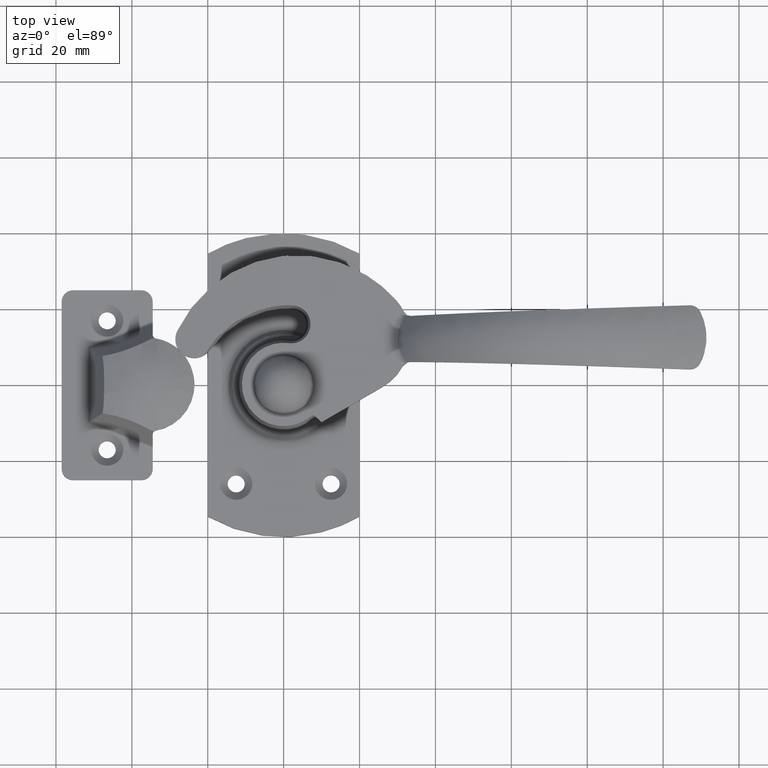
[diagram: clean part render]
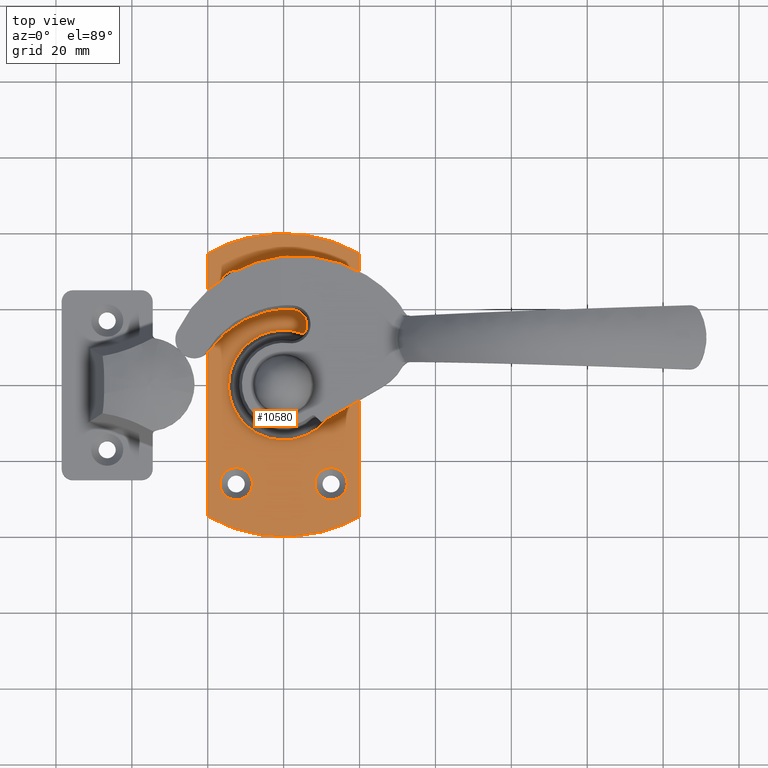
[diagram: same view with one face highlighted and labeled with its STEP entity id]
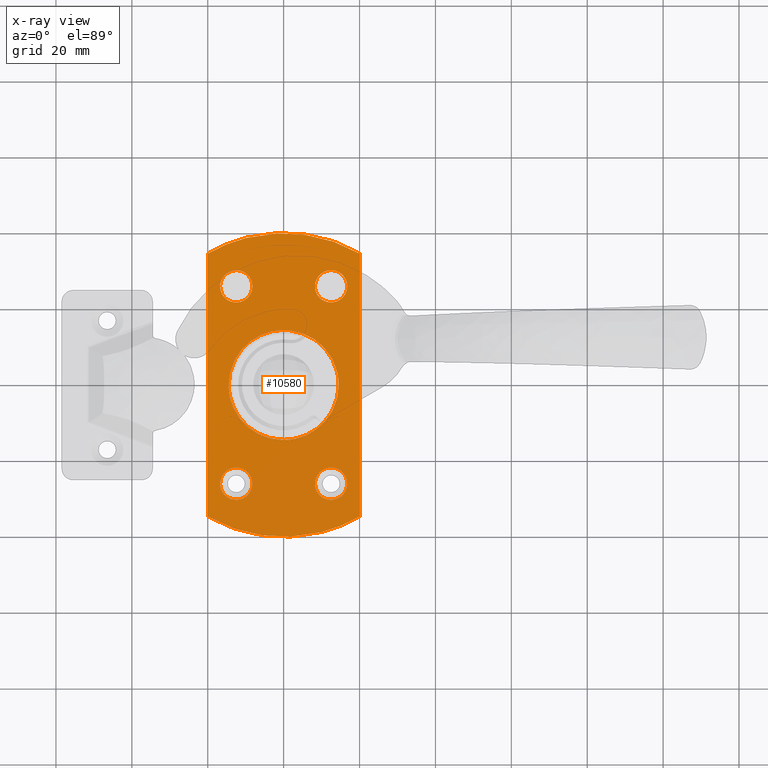
[diagram: x-ray of the same camera — body ghosted, the highlighted face saturated]
A machine part, top view. The second image highlights one B-rep face of the part: STEP entity #10580.
The next image is the same camera in x-ray: the body ghosted, the highlighted face saturated — about 0% of this face is hidden behind the body in this view.
In plain terms, the highlighted face is a freeform B-spline surface patch.
Its self-contained STEP definition (entity closure, byte-faithful):
#7089=CARTESIAN_POINT('',(-0.126534765280450,-14.499447884501190,5.999999999924400));
#7090=VERTEX_POINT('',#7089);
#7096=CARTESIAN_POINT('',(14.500000000000000,0.0,6.0));
#7097=VERTEX_POINT('',#7096);
#7098=CARTESIAN_POINT('',(14.500000000000000,0.0,6.0));
#7099=CARTESIAN_POINT('',(14.500000000000000,-14.500000000000000,6.0));
#7100=CARTESIAN_POINT('',(0.0,-14.500000000000000,6.0));
#7101=CARTESIAN_POINT('',(-0.063268587453551,-14.500000000000005,6.000000000000001));
#7102=CARTESIAN_POINT('',(-0.126534765280450,-14.499447884501190,5.999999999924401));
#7110=(BOUNDED_CURVE()B_SPLINE_CURVE(2,(#7098,#7099,#7100,#7101,#7102),.UNSPECIFIED.,.F.,.U.)B_SPLINE_CURVE_WITH_KNOTS((3,2,3),(0.500000000000000,0.750000000000000,0.751539894348431),.UNSPECIFIED.)CURVE()GEOMETRIC_REPRESENTATION_ITEM()RATIONAL_B_SPLINE_CURVE((1.0,0.707106781186548,1.0,0.998195901550621,0.996414028069292))REPRESENTATION_ITEM(''));
#7111=EDGE_CURVE('',#7097,#7090,#7110,.T.);
#7113=CARTESIAN_POINT('',(1.799856030292883,14.387860100470620,5.999999999982838));
#7114=VERTEX_POINT('',#7113);
#7115=CARTESIAN_POINT('',(1.799856030292883,14.387860100470618,5.999999999982838));
#7116=CARTESIAN_POINT('',(14.500000000000005,12.799129701939425,6.0));
#7117=CARTESIAN_POINT('',(14.500000000000000,0.0,6.0));
#7125=(BOUNDED_CURVE()B_SPLINE_CURVE(2,(#7115,#7116,#7117),.UNSPECIFIED.,.F.,.U.)B_SPLINE_CURVE_WITH_KNOTS((3,3),(0.271473928973825,0.500000000000000),.UNSPECIFIED.)CURVE()GEOMETRIC_REPRESENTATION_ITEM()RATIONAL_B_SPLINE_CURVE((0.954005430268657,0.732265053897407,1.0))REPRESENTATION_ITEM(''));
#7126=EDGE_CURVE('',#7114,#7097,#7125,.T.);
#7176=CARTESIAN_POINT('',(-14.500000000000000,0.0,6.0));
#7177=VERTEX_POINT('',#7176);
#7178=CARTESIAN_POINT('',(-14.500000000000000,0.0,6.0));
#7179=CARTESIAN_POINT('',(-14.500000000000000,14.500000000000000,6.0));
#7180=CARTESIAN_POINT('',(0.0,14.500000000000000,6.0));
#7181=CARTESIAN_POINT('',(0.903421449370458,14.500000000000005,6.000000000000001));
#7182=CARTESIAN_POINT('',(1.799856030292882,14.387860100470617,5.999999999982838));
#7190=(BOUNDED_CURVE()B_SPLINE_CURVE(2,(#7178,#7179,#7180,#7181,#7182),.UNSPECIFIED.,.F.,.U.)B_SPLINE_CURVE_WITH_KNOTS((3,2,3),(0.0,0.250000000000000,0.271473928973825),.UNSPECIFIED.)CURVE()GEOMETRIC_REPRESENTATION_ITEM()RATIONAL_B_SPLINE_CURVE((1.0,0.707106781186548,1.0,0.974841727289140,0.954005430268658))REPRESENTATION_ITEM(''));
#7191=EDGE_CURVE('',#7177,#7114,#7190,.T.);
#7193=CARTESIAN_POINT('',(-0.126534765280450,-14.499447884501189,5.999999999924401));
#7194=CARTESIAN_POINT('',(-14.500000000000007,-14.374012552529983,6.0));
#7195=CARTESIAN_POINT('',(-14.500000000000000,0.0,6.0));
#7203=(BOUNDED_CURVE()B_SPLINE_CURVE(2,(#7193,#7194,#7195),.UNSPECIFIED.,.F.,.U.)B_SPLINE_CURVE_WITH_KNOTS((3,3),(0.751539894348432,1.0),.UNSPECIFIED.)CURVE()GEOMETRIC_REPRESENTATION_ITEM()RATIONAL_B_SPLINE_CURVE((0.996414028069290,0.708910879635927,1.0))REPRESENTATION_ITEM(''));
#7204=EDGE_CURVE('',#7090,#7177,#7203,.T.);
#7462=CARTESIAN_POINT('',(-13.001645497956600,21.779709512949729,6.000000000083199));
#7463=VERTEX_POINT('',#7462);
#7469=CARTESIAN_POINT('',(-8.250000000000000,26.0,6.0));
#7470=VERTEX_POINT('',#7469);
#7471=CARTESIAN_POINT('',(-13.001645497956602,21.779709512949729,6.000000000083199));
#7472=CARTESIAN_POINT('',(-12.751702509183103,21.750000000000000,6.0));
#7473=CARTESIAN_POINT('',(-12.500000000000000,21.750000000000000,6.0));
#7474=CARTESIAN_POINT('',(-8.250000000000000,21.750000000000000,6.0));
#7475=CARTESIAN_POINT('',(-8.250000000000000,26.0,6.0));
#7483=(BOUNDED_CURVE()B_SPLINE_CURVE(2,(#7471,#7472,#7473,#7474,#7475),.UNSPECIFIED.,.F.,.U.)B_SPLINE_CURVE_WITH_KNOTS((3,2,3),(0.229562473463140,0.250000000000000,0.500000000000000),.UNSPECIFIED.)CURVE()GEOMETRIC_REPRESENTATION_ITEM()RATIONAL_B_SPLINE_CURVE((0.956026754084976,0.976055948272135,1.0,0.707106781186548,1.0))REPRESENTATION_ITEM(''));
#7484=EDGE_CURVE('',#7463,#7470,#7483,.T.);
#7486=CARTESIAN_POINT('',(-12.240543705135419,30.242072893424350,6.000000000243587));
#7487=VERTEX_POINT('',#7486);
#7488=CARTESIAN_POINT('',(-8.250000000000000,26.0,6.0));
#7489=CARTESIAN_POINT('',(-8.249999999999998,29.998000780899833,6.0));
#7490=CARTESIAN_POINT('',(-12.240543705135419,30.242072893424346,6.000000000243587));
#7498=(BOUNDED_CURVE()B_SPLINE_CURVE(2,(#7488,#7489,#7490),.UNSPECIFIED.,.F.,.U.)B_SPLINE_CURVE_WITH_KNOTS((3,3),(0.500000000000000,0.739332962093377),.UNSPECIFIED.)CURVE()GEOMETRIC_REPRESENTATION_ITEM()RATIONAL_B_SPLINE_CURVE((1.0,0.719603993457251,0.976072041354742))REPRESENTATION_ITEM(''));
#7499=EDGE_CURVE('',#7470,#7487,#7498,.T.);
#7533=CARTESIAN_POINT('',(-16.750000000000000,26.0,6.0));
#7534=VERTEX_POINT('',#7533);
#7535=CARTESIAN_POINT('',(-12.240543705135416,30.242072893424357,6.000000000243587));
#7536=CARTESIAN_POINT('',(-12.370150754149309,30.250000000000000,6.000000000000001));
#7537=CARTESIAN_POINT('',(-12.500000000000000,30.250000000000000,6.0));
#7538=CARTESIAN_POINT('',(-16.750000000000000,30.250000000000007,6.0));
#7539=CARTESIAN_POINT('',(-16.750000000000000,26.0,6.0));
#7547=(BOUNDED_CURVE()B_SPLINE_CURVE(2,(#7535,#7536,#7537,#7538,#7539),.UNSPECIFIED.,.F.,.U.)B_SPLINE_CURVE_WITH_KNOTS((3,2,3),(0.739332962093376,0.750000000000000,1.0),.UNSPECIFIED.)CURVE()GEOMETRIC_REPRESENTATION_ITEM()RATIONAL_B_SPLINE_CURVE((0.976072041354741,0.987502787729296,1.0,0.707106781186548,1.0))REPRESENTATION_ITEM(''));
#7548=EDGE_CURVE('',#7487,#7534,#7547,.T.);
#7550=CARTESIAN_POINT('',(-16.750000000000000,26.0,6.0));
#7551=CARTESIAN_POINT('',(-16.750000000000004,22.225258265887643,6.0));
#7552=CARTESIAN_POINT('',(-13.001645497956602,21.779709512949729,6.000000000083199));
#7560=(BOUNDED_CURVE()B_SPLINE_CURVE(2,(#7550,#7551,#7552),.UNSPECIFIED.,.F.,.U.)B_SPLINE_CURVE_WITH_KNOTS((3,3),(0.0,0.229562473463140),.UNSPECIFIED.)CURVE()GEOMETRIC_REPRESENTATION_ITEM()RATIONAL_B_SPLINE_CURVE((1.0,0.731050832914412,0.956026754084976))REPRESENTATION_ITEM(''));
#7561=EDGE_CURVE('',#7534,#7463,#7560,.T.);
#7791=CARTESIAN_POINT('',(12.833451159268821,21.763101331509141,6.000000000314981));
#7792=VERTEX_POINT('',#7791);
#7798=CARTESIAN_POINT('',(16.750000000000000,26.0,6.0));
#7799=VERTEX_POINT('',#7798);
#7800=CARTESIAN_POINT('',(16.750000000000000,26.0,6.0));
#7801=CARTESIAN_POINT('',(16.750000000000007,22.071340414918591,6.000000000000001));
#7802=CARTESIAN_POINT('',(12.833451159268819,21.763101331509141,6.000000000314981));
#7810=(BOUNDED_CURVE()B_SPLINE_CURVE(2,(#7800,#7801,#7802),.UNSPECIFIED.,.F.,.U.)B_SPLINE_CURVE_WITH_KNOTS((3,3),(0.0,0.236331300438498),.UNSPECIFIED.)CURVE()GEOMETRIC_REPRESENTATION_ITEM()RATIONAL_B_SPLINE_CURVE((1.0,0.723120658832797,0.969723355766390))REPRESENTATION_ITEM(''));
#7811=EDGE_CURVE('',#7799,#7792,#7810,.T.);
#7813=CARTESIAN_POINT('',(12.166548840731179,30.236898668490859,6.000000000314980));
#7814=VERTEX_POINT('',#7813);
#7815=CARTESIAN_POINT('',(12.166548840731183,30.236898668490859,6.000000000314980));
#7816=CARTESIAN_POINT('',(12.333017042805499,30.250000000000007,6.000000000000001));
#7817=CARTESIAN_POINT('',(12.500000000000000,30.250000000000000,6.0));
#7818=CARTESIAN_POINT('',(16.750000000000000,30.250000000000007,6.0));
#7819=CARTESIAN_POINT('',(16.750000000000000,26.0,6.0));
#7827=(BOUNDED_CURVE()B_SPLINE_CURVE(2,(#7815,#7816,#7817,#7818,#7819),.UNSPECIFIED.,.F.,.U.)B_SPLINE_CURVE_WITH_KNOTS((3,2,3),(0.736331300438498,0.750000000000000,1.0),.UNSPECIFIED.)CURVE()GEOMETRIC_REPRESENTATION_ITEM()RATIONAL_B_SPLINE_CURVE((0.969723355766390,0.983986122353750,1.0,0.707106781186548,1.0))REPRESENTATION_ITEM(''));
#7828=EDGE_CURVE('',#7814,#7799,#7827,.T.);
#7865=CARTESIAN_POINT('',(8.250000000000000,26.0,6.0));
#7866=VERTEX_POINT('',#7865);
#7867=CARTESIAN_POINT('',(8.250000000000000,26.0,6.0));
#7868=CARTESIAN_POINT('',(8.250000000000000,29.928659585081384,6.000000000000001));
#7869=CARTESIAN_POINT('',(12.166548840731188,30.236898668490863,6.000000000314980));
#7877=(BOUNDED_CURVE()B_SPLINE_CURVE(2,(#7867,#7868,#7869),.UNSPECIFIED.,.F.,.U.)B_SPLINE_CURVE_WITH_KNOTS((3,3),(0.500000000000000,0.736331300438497),.UNSPECIFIED.)CURVE()GEOMETRIC_REPRESENTATION_ITEM()RATIONAL_B_SPLINE_CURVE((1.0,0.723120658832798,0.969723355766389))REPRESENTATION_ITEM(''));
#7878=EDGE_CURVE('',#7866,#7814,#7877,.T.);
#7880=CARTESIAN_POINT('',(12.833451159268819,21.763101331509141,6.000000000314981));
#7881=CARTESIAN_POINT('',(12.666982957194506,21.750000000000004,6.0));
#7882=CARTESIAN_POINT('',(12.500000000000000,21.750000000000000,6.0));
#7883=CARTESIAN_POINT('',(8.250000000000000,21.750000000000000,6.0));
#7884=CARTESIAN_POINT('',(8.250000000000000,26.0,6.0));
#7892=(BOUNDED_CURVE()B_SPLINE_CURVE(2,(#7880,#7881,#7882,#7883,#7884),.UNSPECIFIED.,.F.,.U.)B_SPLINE_CURVE_WITH_KNOTS((3,2,3),(0.236331300438498,0.250000000000000,0.500000000000000),.UNSPECIFIED.)CURVE()GEOMETRIC_REPRESENTATION_ITEM()RATIONAL_B_SPLINE_CURVE((0.969723355766390,0.983986122353750,1.0,0.707106781186548,1.0))REPRESENTATION_ITEM(''));
#7893=EDGE_CURVE('',#7792,#7866,#7892,.T.);
#8123=CARTESIAN_POINT('',(-12.833451159268821,-21.763101331509141,6.000000000314981));
#8124=VERTEX_POINT('',#8123);
#8130=CARTESIAN_POINT('',(-16.750000000000000,-26.0,6.0));
#8131=VERTEX_POINT('',#8130);
#8132=CARTESIAN_POINT('',(-16.750000000000000,-26.0,6.0));
#8133=CARTESIAN_POINT('',(-16.750000000000007,-22.071340414918591,6.000000000000001));
#8134=CARTESIAN_POINT('',(-12.833451159268819,-21.763101331509141,6.000000000314981));
#8142=(BOUNDED_CURVE()B_SPLINE_CURVE(2,(#8132,#8133,#8134),.UNSPECIFIED.,.F.,.U.)B_SPLINE_CURVE_WITH_KNOTS((3,3),(0.0,0.236331300438498),.UNSPECIFIED.)CURVE()GEOMETRIC_REPRESENTATION_ITEM()RATIONAL_B_SPLINE_CURVE((1.0,0.723120658832797,0.969723355766390))REPRESENTATION_ITEM(''));
#8143=EDGE_CURVE('',#8131,#8124,#8142,.T.);
#8145=CARTESIAN_POINT('',(-12.166548840731179,-30.236898668490859,6.000000000314980));
#8146=VERTEX_POINT('',#8145);
#8147=CARTESIAN_POINT('',(-12.166548840731183,-30.236898668490859,6.000000000314980));
#8148=CARTESIAN_POINT('',(-12.333017042805499,-30.250000000000007,6.000000000000001));
#8149=CARTESIAN_POINT('',(-12.500000000000000,-30.250000000000000,6.0));
#8150=CARTESIAN_POINT('',(-16.750000000000000,-30.250000000000007,6.0));
#8151=CARTESIAN_POINT('',(-16.750000000000000,-26.0,6.0));
#8159=(BOUNDED_CURVE()B_SPLINE_CURVE(2,(#8147,#8148,#8149,#8150,#8151),.UNSPECIFIED.,.F.,.U.)B_SPLINE_CURVE_WITH_KNOTS((3,2,3),(0.736331300438498,0.750000000000000,1.0),.UNSPECIFIED.)CURVE()GEOMETRIC_REPRESENTATION_ITEM()RATIONAL_B_SPLINE_CURVE((0.969723355766390,0.983986122353750,1.0,0.707106781186548,1.0))REPRESENTATION_ITEM(''));
#8160=EDGE_CURVE('',#8146,#8131,#8159,.T.);
#8197=CARTESIAN_POINT('',(-8.250000000000000,-26.0,6.0));
#8198=VERTEX_POINT('',#8197);
#8199=CARTESIAN_POINT('',(-8.250000000000000,-26.0,6.0));
#8200=CARTESIAN_POINT('',(-8.250000000000000,-29.928659585081384,6.000000000000001));
#8201=CARTESIAN_POINT('',(-12.166548840731188,-30.236898668490863,6.000000000314980));
#8209=(BOUNDED_CURVE()B_SPLINE_CURVE(2,(#8199,#8200,#8201),.UNSPECIFIED.,.F.,.U.)B_SPLINE_CURVE_WITH_KNOTS((3,3),(0.500000000000000,0.736331300438497),.UNSPECIFIED.)CURVE()GEOMETRIC_REPRESENTATION_ITEM()RATIONAL_B_SPLINE_CURVE((1.0,0.723120658832798,0.969723355766389))REPRESENTATION_ITEM(''));
#8210=EDGE_CURVE('',#8198,#8146,#8209,.T.);
#8212=CARTESIAN_POINT('',(-12.833451159268819,-21.763101331509141,6.000000000314981));
#8213=CARTESIAN_POINT('',(-12.666982957194506,-21.750000000000004,6.0));
#8214=CARTESIAN_POINT('',(-12.500000000000000,-21.750000000000000,6.0));
#8215=CARTESIAN_POINT('',(-8.250000000000000,-21.750000000000000,6.0));
#8216=CARTESIAN_POINT('',(-8.250000000000000,-26.0,6.0));
#8224=(BOUNDED_CURVE()B_SPLINE_CURVE(2,(#8212,#8213,#8214,#8215,#8216),.UNSPECIFIED.,.F.,.U.)B_SPLINE_CURVE_WITH_KNOTS((3,2,3),(0.236331300438498,0.250000000000000,0.500000000000000),.UNSPECIFIED.)CURVE()GEOMETRIC_REPRESENTATION_ITEM()RATIONAL_B_SPLINE_CURVE((0.969723355766390,0.983986122353750,1.0,0.707106781186548,1.0))REPRESENTATION_ITEM(''));
#8225=EDGE_CURVE('',#8124,#8198,#8224,.T.);
#8470=CARTESIAN_POINT('',(13.001645497956600,-21.779709512949729,6.000000000083199));
#8471=VERTEX_POINT('',#8470);
#8477=CARTESIAN_POINT('',(8.250000000000000,-26.0,6.0));
#8478=VERTEX_POINT('',#8477);
#8479=CARTESIAN_POINT('',(13.001645497956602,-21.779709512949729,6.000000000083199));
#8480=CARTESIAN_POINT('',(12.751702509183103,-21.750000000000000,6.0));
#8481=CARTESIAN_POINT('',(12.500000000000000,-21.750000000000000,6.0));
#8482=CARTESIAN_POINT('',(8.250000000000000,-21.750000000000000,6.0));
#8483=CARTESIAN_POINT('',(8.250000000000000,-26.0,6.0));
#8491=(BOUNDED_CURVE()B_SPLINE_CURVE(2,(#8479,#8480,#8481,#8482,#8483),.UNSPECIFIED.,.F.,.U.)B_SPLINE_CURVE_WITH_KNOTS((3,2,3),(0.229562473463140,0.250000000000000,0.500000000000000),.UNSPECIFIED.)CURVE()GEOMETRIC_REPRESENTATION_ITEM()RATIONAL_B_SPLINE_CURVE((0.956026754084976,0.976055948272135,1.0,0.707106781186548,1.0))REPRESENTATION_ITEM(''));
#8492=EDGE_CURVE('',#8471,#8478,#8491,.T.);
#8494=CARTESIAN_POINT('',(12.240543705135419,-30.242072893424350,6.000000000243587));
#8495=VERTEX_POINT('',#8494);
#8496=CARTESIAN_POINT('',(8.250000000000000,-26.0,6.0));
#8497=CARTESIAN_POINT('',(8.249999999999998,-29.998000780899833,6.0));
#8498=CARTESIAN_POINT('',(12.240543705135419,-30.242072893424346,6.000000000243587));
#8506=(BOUNDED_CURVE()B_SPLINE_CURVE(2,(#8496,#8497,#8498),.UNSPECIFIED.,.F.,.U.)B_SPLINE_CURVE_WITH_KNOTS((3,3),(0.500000000000000,0.739332962093377),.UNSPECIFIED.)CURVE()GEOMETRIC_REPRESENTATION_ITEM()RATIONAL_B_SPLINE_CURVE((1.0,0.719603993457251,0.976072041354742))REPRESENTATION_ITEM(''));
#8507=EDGE_CURVE('',#8478,#8495,#8506,.T.);
#8541=CARTESIAN_POINT('',(16.750000000000000,-26.0,6.0));
#8542=VERTEX_POINT('',#8541);
#8543=CARTESIAN_POINT('',(12.240543705135416,-30.242072893424357,6.000000000243587));
#8544=CARTESIAN_POINT('',(12.370150754149309,-30.250000000000000,6.000000000000001));
#8545=CARTESIAN_POINT('',(12.500000000000000,-30.250000000000000,6.0));
#8546=CARTESIAN_POINT('',(16.750000000000000,-30.250000000000007,6.0));
#8547=CARTESIAN_POINT('',(16.750000000000000,-26.0,6.0));
#8555=(BOUNDED_CURVE()B_SPLINE_CURVE(2,(#8543,#8544,#8545,#8546,#8547),.UNSPECIFIED.,.F.,.U.)B_SPLINE_CURVE_WITH_KNOTS((3,2,3),(0.739332962093376,0.750000000000000,1.0),.UNSPECIFIED.)CURVE()GEOMETRIC_REPRESENTATION_ITEM()RATIONAL_B_SPLINE_CURVE((0.976072041354741,0.987502787729296,1.0,0.707106781186548,1.0))REPRESENTATION_ITEM(''));
#8556=EDGE_CURVE('',#8495,#8542,#8555,.T.);
#8558=CARTESIAN_POINT('',(16.750000000000000,-26.0,6.0));
#8559=CARTESIAN_POINT('',(16.750000000000004,-22.225258265887643,6.0));
#8560=CARTESIAN_POINT('',(13.001645497956602,-21.779709512949729,6.000000000083199));
#8568=(BOUNDED_CURVE()B_SPLINE_CURVE(2,(#8558,#8559,#8560),.UNSPECIFIED.,.F.,.U.)B_SPLINE_CURVE_WITH_KNOTS((3,3),(0.0,0.229562473463140),.UNSPECIFIED.)CURVE()GEOMETRIC_REPRESENTATION_ITEM()RATIONAL_B_SPLINE_CURVE((1.0,0.731050832914412,0.956026754084976))REPRESENTATION_ITEM(''));
#8569=EDGE_CURVE('',#8542,#8471,#8568,.T.);
#10321=CARTESIAN_POINT('',(-20.0,-34.641015999999802,6.0));
#10322=VERTEX_POINT('',#10321);
#10328=CARTESIAN_POINT('',(-20.0,34.641016151377549,6.0));
#10329=VERTEX_POINT('',#10328);
#10330=CARTESIAN_POINT('',(-20.0,34.641016151377549,6.0));
#10331=CARTESIAN_POINT('',(-20.0,-34.641015999999802,6.0));
#10332=QUASI_UNIFORM_CURVE('',1,(#10330,#10331),.UNSPECIFIED.,.F.,.U.);
#10333=EDGE_CURVE('',#10329,#10322,#10332,.T.);
#10373=CARTESIAN_POINT('',(20.0,34.641015999999993,6.0));
#10374=VERTEX_POINT('',#10373);
#10375=CARTESIAN_POINT('',(20.0,34.641015999999993,6.0));
#10376=CARTESIAN_POINT('',(0.000000043698926,46.188021560399648,6.0));
#10377=CARTESIAN_POINT('',(-20.0,34.641016151377549,6.0));
#10385=(BOUNDED_CURVE()B_SPLINE_CURVE(2,(#10375,#10376,#10377),.UNSPECIFIED.,.F.,.U.)CURVE()GEOMETRIC_REPRESENTATION_ITEM()QUASI_UNIFORM_CURVE()RATIONAL_B_SPLINE_CURVE((1.0,0.866025403311384,1.0))REPRESENTATION_ITEM(''));
#10386=EDGE_CURVE('',#10374,#10329,#10385,.T.);
#10409=CARTESIAN_POINT('',(20.0,-34.641015999999802,6.0));
#10410=VERTEX_POINT('',#10409);
#10411=CARTESIAN_POINT('',(20.0,-34.641015999999802,6.0));
#10412=CARTESIAN_POINT('',(20.0,34.641015999999993,6.0));
#10413=QUASI_UNIFORM_CURVE('',1,(#10411,#10412),.UNSPECIFIED.,.F.,.U.);
#10414=EDGE_CURVE('',#10410,#10374,#10413,.T.);
#10452=CARTESIAN_POINT('',(-20.0,-34.641015999999802,6.0));
#10453=CARTESIAN_POINT('',(-3.469447E-015,-46.188021585629315,6.0));
#10454=CARTESIAN_POINT('',(20.0,-34.641015999999802,6.0));
#10462=(BOUNDED_CURVE()B_SPLINE_CURVE(2,(#10452,#10453,#10454),.UNSPECIFIED.,.F.,.U.)CURVE()GEOMETRIC_REPRESENTATION_ITEM()QUASI_UNIFORM_CURVE()RATIONAL_B_SPLINE_CURVE((1.0,0.866025402838328,1.0))REPRESENTATION_ITEM(''));
#10463=EDGE_CURVE('',#10322,#10410,#10462,.T.);
#10539=CARTESIAN_POINT('',(21.997999922472239,43.995999809964736,6.0));
#10540=CARTESIAN_POINT('',(-21.998000995355849,43.995999809964736,6.0));
#10541=CARTESIAN_POINT('',(21.997999922472239,-43.996001925310750,6.0));
#10542=CARTESIAN_POINT('',(-21.998000995355849,-43.996001925310750,6.0));
#10543=B_SPLINE_SURFACE_WITH_KNOTS('',1,1,((#10539,#10541),(#10540,#10542)),.UNSPECIFIED.,.F.,.F.,.U.,(2,2),(2,2),(0.0,43.996000917828077),(0.0,87.992001735275494),.UNSPECIFIED.);
#10544=ORIENTED_EDGE('',*,*,#10463,.T.);
#10545=ORIENTED_EDGE('',*,*,#10414,.T.);
#10546=ORIENTED_EDGE('',*,*,#10386,.T.);
#10547=ORIENTED_EDGE('',*,*,#10333,.T.);
#10548=EDGE_LOOP('',(#10544,#10545,#10546,#10547));
#10549=FACE_OUTER_BOUND('',#10548,.T.);
#10550=ORIENTED_EDGE('',*,*,#8507,.F.);
#10551=ORIENTED_EDGE('',*,*,#8492,.F.);
#10552=ORIENTED_EDGE('',*,*,#8569,.F.);
#10553=ORIENTED_EDGE('',*,*,#8556,.F.);
#10554=EDGE_LOOP('',(#10550,#10551,#10552,#10553));
#10555=FACE_BOUND('',#10554,.T.);
#10556=ORIENTED_EDGE('',*,*,#8210,.T.);
#10557=ORIENTED_EDGE('',*,*,#8160,.T.);
#10558=ORIENTED_EDGE('',*,*,#8143,.T.);
#10559=ORIENTED_EDGE('',*,*,#8225,.T.);
#10560=EDGE_LOOP('',(#10556,#10557,#10558,#10559));
#10561=FACE_BOUND('',#10560,.T.);
#10562=ORIENTED_EDGE('',*,*,#7878,.T.);
#10563=ORIENTED_EDGE('',*,*,#7828,.T.);
#10564=ORIENTED_EDGE('',*,*,#7811,.T.);
#10565=ORIENTED_EDGE('',*,*,#7893,.T.);
#10566=EDGE_LOOP('',(#10562,#10563,#10564,#10565));
#10567=FACE_BOUND('',#10566,.T.);
#10568=ORIENTED_EDGE('',*,*,#7499,.F.);
#10569=ORIENTED_EDGE('',*,*,#7484,.F.);
#10570=ORIENTED_EDGE('',*,*,#7561,.F.);
#10571=ORIENTED_EDGE('',*,*,#7548,.F.);
#10572=EDGE_LOOP('',(#10568,#10569,#10570,#10571));
#10573=FACE_BOUND('',#10572,.T.);
#10574=ORIENTED_EDGE('',*,*,#7111,.T.);
#10575=ORIENTED_EDGE('',*,*,#7204,.T.);
#10576=ORIENTED_EDGE('',*,*,#7191,.T.);
#10577=ORIENTED_EDGE('',*,*,#7126,.T.);
#10578=EDGE_LOOP('',(#10574,#10575,#10576,#10577));
#10579=FACE_BOUND('',#10578,.T.);
#10580=ADVANCED_FACE('',(#10549,#10555,#10561,#10567,#10573,#10579),#10543,.T.);